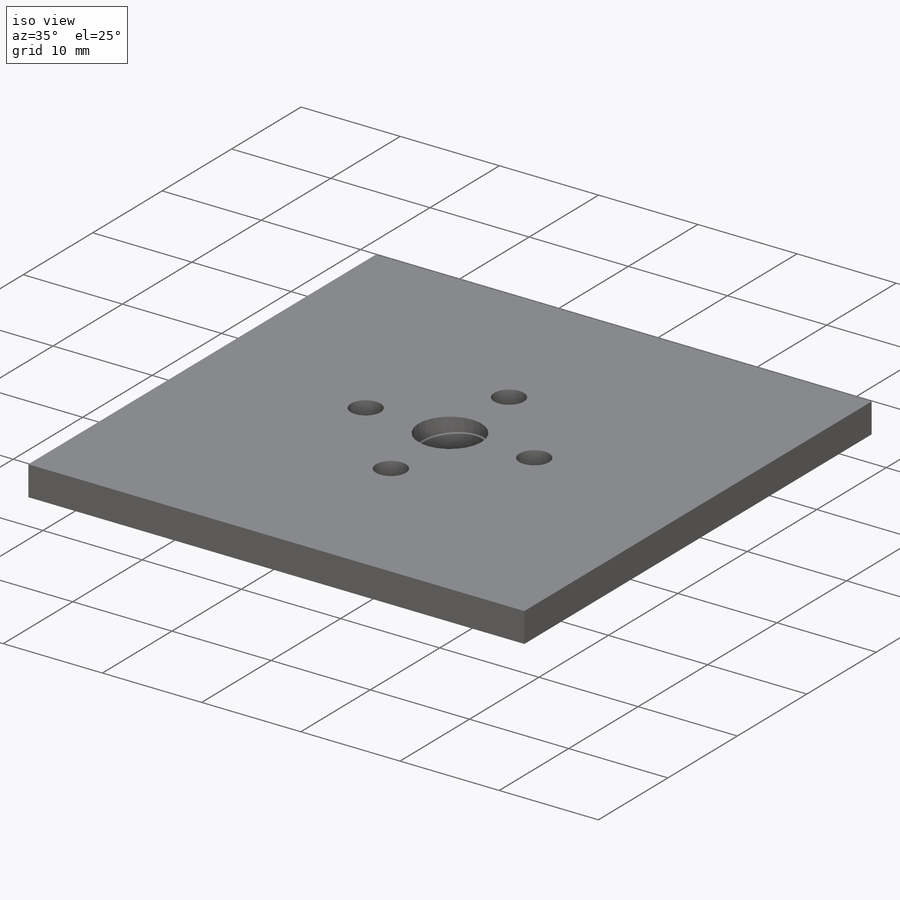
[diagram: iso view]
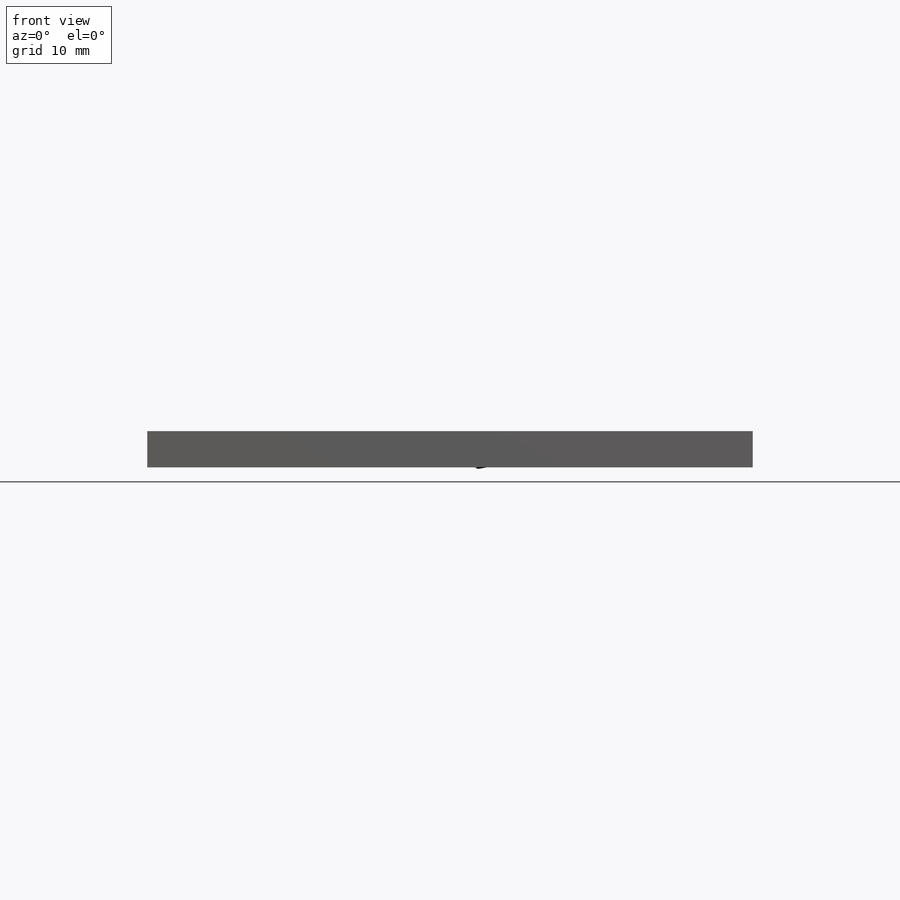
[diagram: front view]
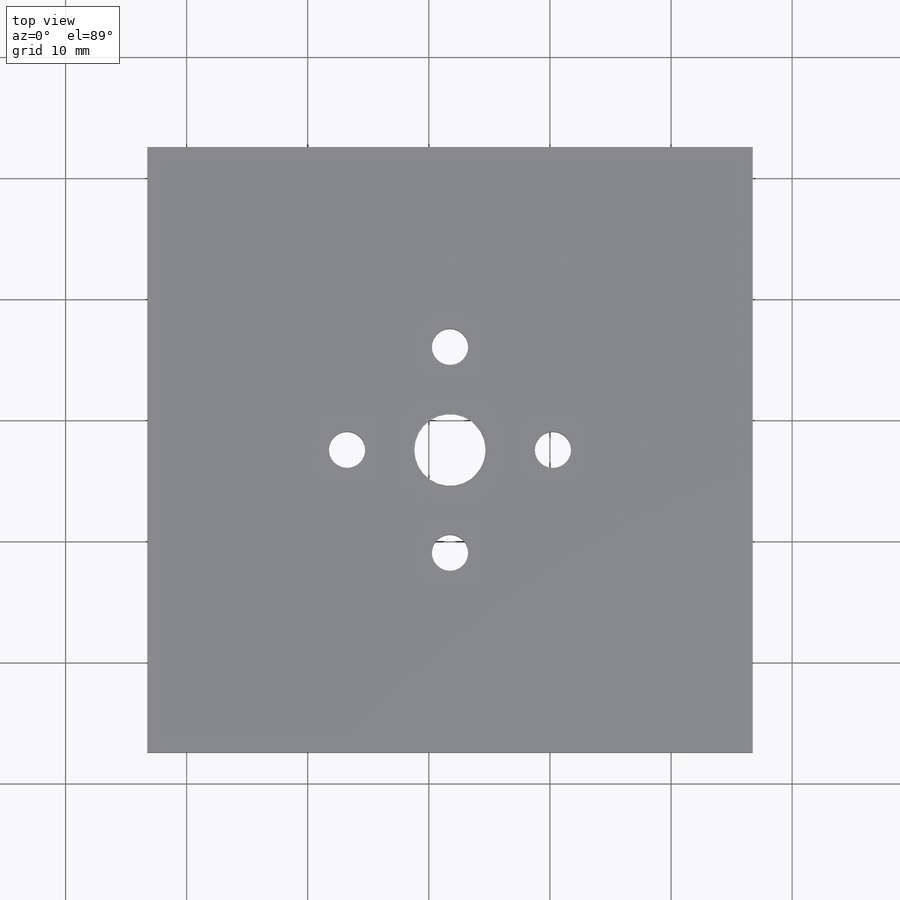
[diagram: top view]
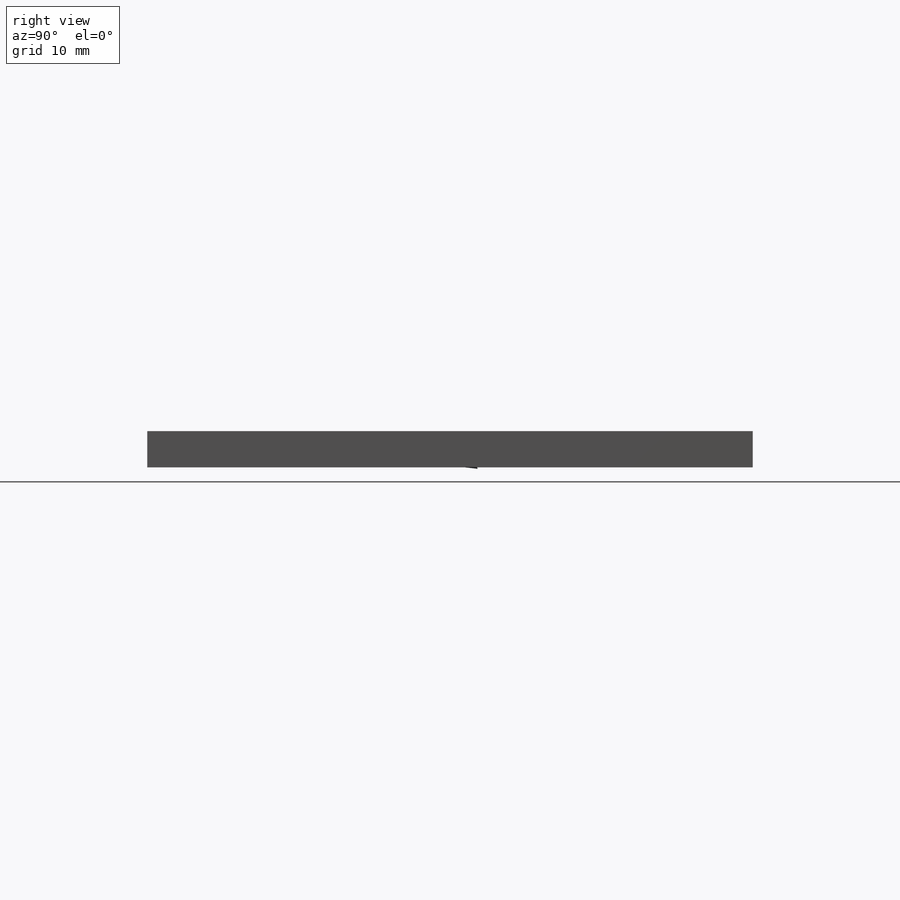
[diagram: right view]
SOLIDWORKS PART (.sldprt)
format: sldprt  version: not decoded by parser v0  size: 179,200 bytes
history: native  units: mm
features: sketch x4, material x1, extrude x1, cut_extrude x1, helix x1, plane x1, sweep x1 (+13 scaffold rows collapsed)
feature tree (23):
  scaffold x13  (default folders/planes/origin — collapsed)
  material  "Material <not specified>"
  sketch  "Sketch1"  dims[D1=50.0mm D2=50.0mm]
  extrude  "Boss-Extrude1"  Depth=3mm
  sketch  "Sketch2"  dims[c1.D2=~1.875149mm c1.D1=0.0mm c2.D2=8.5mm c2.D3=8.5mm c2.D4=8.5mm c2.D5=8.5mm]
  cut_extrude  "Cut-Extrude1"  Depth=100mm
  sketch  "Sketch5"  dims[D1=~3.273911mm]
  helix  "Helix/Spiral1"  Pitch=2.5mm
  plane  "Plane1"
  sketch  "Sketch7"
  sweep  "Sweep1"
decode coverage: 6 of 8 modeling features carry decoded parameters
note: ~ marks probable driven/reference dimensions
note: suppression state not decoded; provenance and decode notes live in map.json
